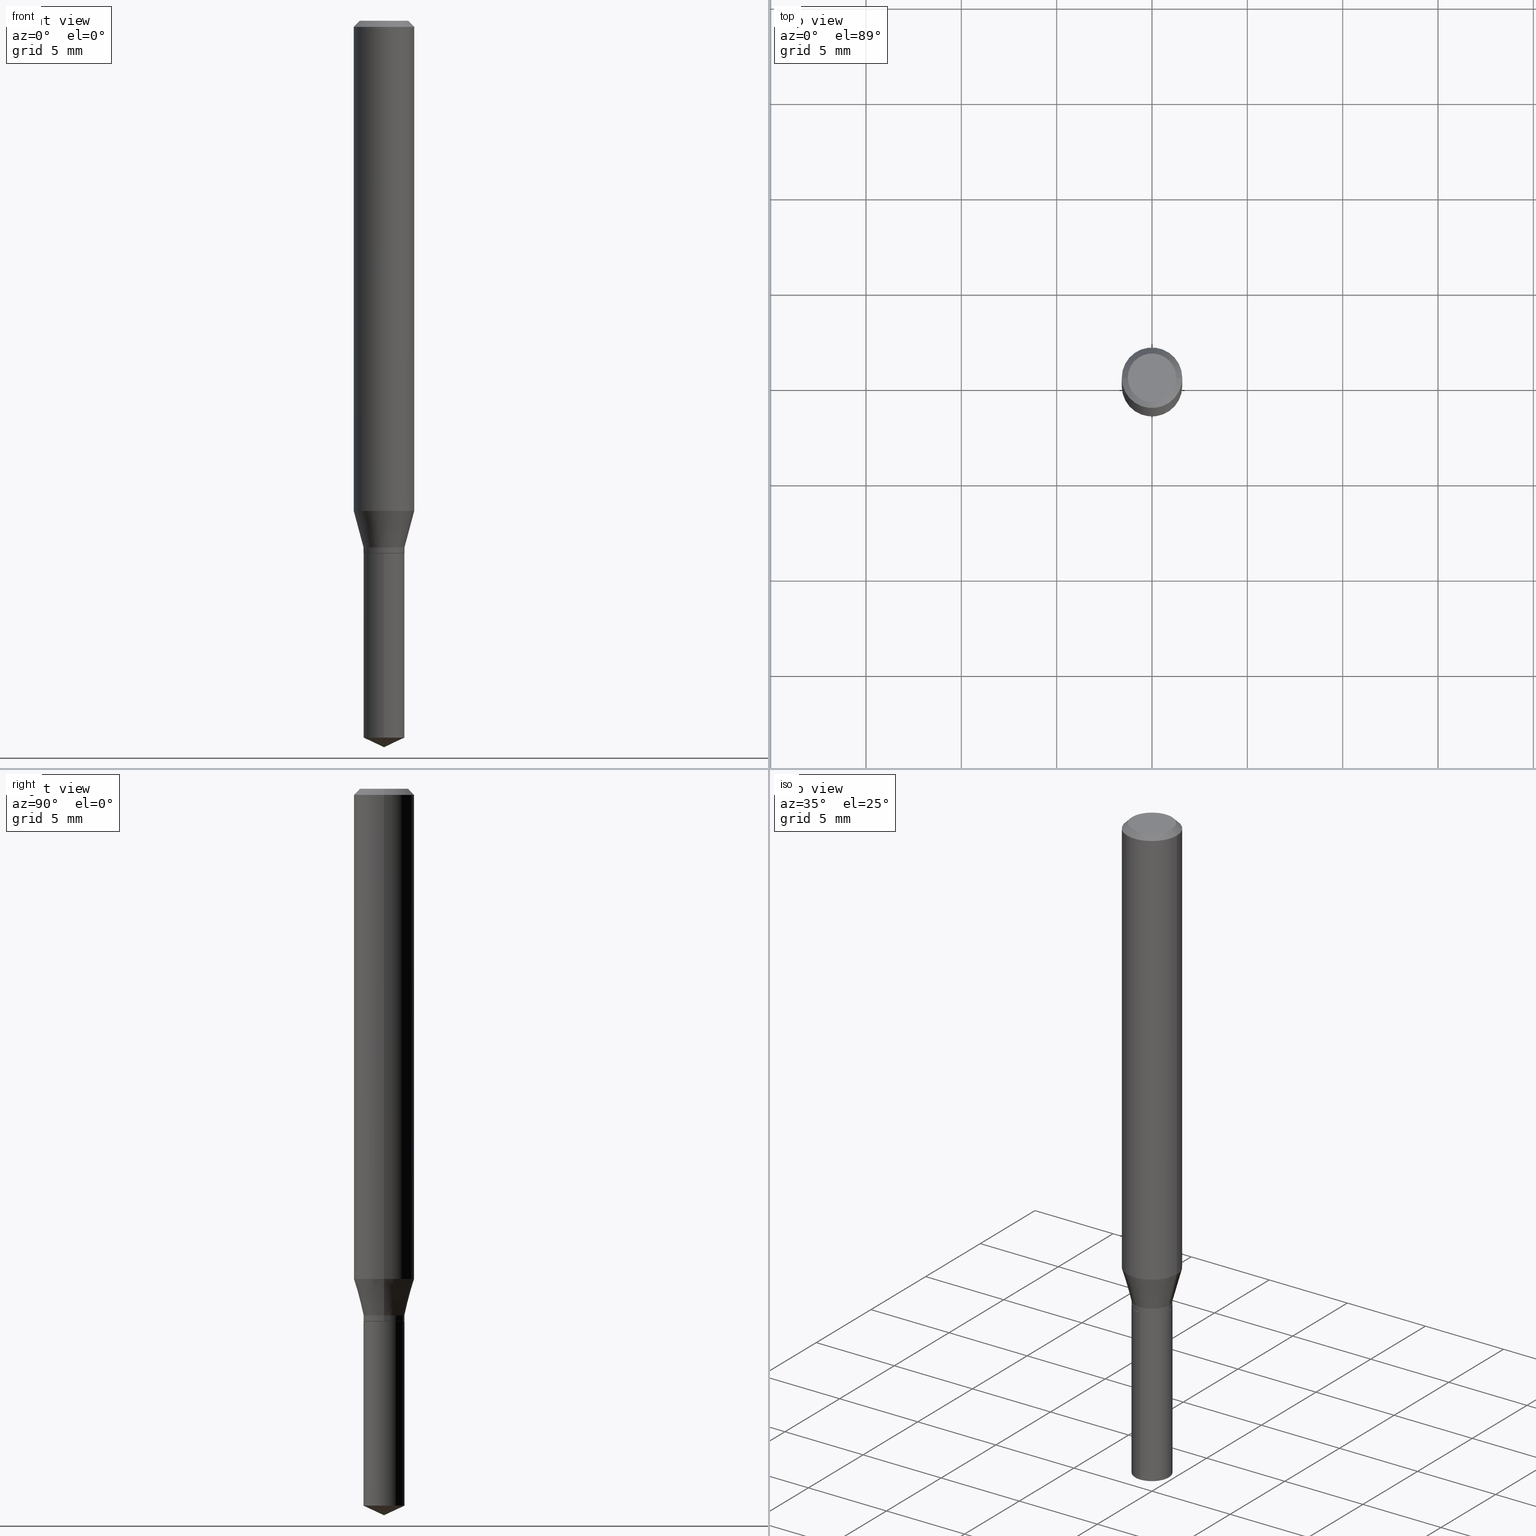
[diagram: canonical four-view strip — front | top / right | iso, engineering-drawing reading convention]
A machine part, canonical four-view strip (front | top / right | iso — engineering-drawing reading convention). The complete STEP part file that produces these views, byte-faithful:
ISO-10303-21;
HEADER;
FILE_DESCRIPTION (( 'STEP AP203' ),
    '1' );
FILE_NAME ('07194.STEP',
    '2024-04-23T19:57:21',
    ( '' ),
    ( '' ),
    'SwSTEP 2.0',
    'SolidWorks 2023',
    '' );
FILE_SCHEMA (( 'CONFIG_CONTROL_DESIGN' ));
ENDSEC;

DATA;
#1 = DIRECTION ( 'NONE',  ( -2.445468806185136877E-29, 3.491481338843145188E-15, 1.000000000000000000 ) ) ;
#2 = ORIENTED_EDGE ( 'NONE', *, *, #430, .F. ) ;
#3 = ORIENTED_EDGE ( 'NONE', *, *, #151, .T. ) ;
#4 = EDGE_CURVE ( 'NONE', #324, #416, #144, .T. ) ;
#5 = CALENDAR_DATE ( 2024, 23, 4 ) ;
#6 = CARTESIAN_POINT ( 'NONE',  ( 2.690015686803650369E-29, -3.840629472727460101E-15, -1.100000000000000089 ) ) ;
#7 = AXIS2_PLACEMENT_3D ( 'NONE', #131, #56, #94 ) ;
#8 = CARTESIAN_POINT ( 'NONE',  ( 0.000000000000000000, 0.000000000000000000, 0.000000000000000000 ) ) ;
#9 = CARTESIAN_POINT ( 'NONE',  ( 2.690015686803650369E-29, -3.840629472727460101E-15, -1.100000000000000089 ) ) ;
#10 = CARTESIAN_POINT ( 'NONE',  ( 0.04229999999999999732, -4.091666980990281781E-15, -1.087300000000000155 ) ) ;
#11 = CARTESIAN_POINT ( 'NONE',  ( 0.06250000000000001388, -4.800786840909313294E-16, -0.01250000000000008916 ) ) ;
#12 = VECTOR ( 'NONE', #343, 39.37007874015748854 ) ;
#13 = LOCAL_TIME ( 15, 57, 21.00000000000000000, #79 ) ;
#14 = DIRECTION ( 'NONE',  ( 2.445468806185136597E-29, -3.491481338843145583E-15, -1.000000000000000000 ) ) ;
#15 = DIRECTION ( 'NONE',  ( 1.000000000000000000, -6.982962677686266711E-15, 0.000000000000000000 ) ) ;
#16 = EDGE_CURVE ( 'NONE', #416, #35, #74, .T. ) ;
#17 = PERSON_AND_ORGANIZATION ( #228, #183 ) ;
#18 = CARTESIAN_POINT ( 'NONE',  ( -0.04229999999999999732, -3.495728082497630319E-15, -1.087300000000000155 ) ) ;
#19 = ORIENTED_EDGE ( 'NONE', *, *, #16, .F. ) ;
#20 = CIRCLE ( 'NONE', #477, 0.04999999999999999584 ) ;
#21 = VECTOR ( 'NONE', #171, 39.37007874015748854 ) ;
#22 = FACE_OUTER_BOUND ( 'NONE', #375, .T. ) ;
#23 = EDGE_LOOP ( 'NONE', ( #304, #69 ) ) ;
#24 = CYLINDRICAL_SURFACE ( 'NONE', #211, 0.04229999999999999732 ) ;
#25 = DIRECTION ( 'NONE',  ( -6.982962677686266711E-15, -1.000000000000000000, 3.229134744283999085E-15 ) ) ;
#26 = CC_DESIGN_PERSON_AND_ORGANIZATION_ASSIGNMENT ( #422, #225, ( #30 ) ) ;
#27 = CARTESIAN_POINT ( 'NONE',  ( 0.000000000000000000, 0.000000000000000000, 0.000000000000000000 ) ) ;
#28 = ORIENTED_EDGE ( 'NONE', *, *, #350, .T. ) ;
#29 = CIRCLE ( 'NONE', #435, 0.04229999999999999732 ) ;
#30 = SECURITY_CLASSIFICATION ( '', '', #457 ) ;
#31 = CARTESIAN_POINT ( 'NONE',  ( -0.04999999999999999584, 3.709698922520826725E-16, -1.592040838894077649E-18 ) ) ;
#32 = ORIENTED_EDGE ( 'NONE', *, *, #444, .T. ) ;
#33 = EDGE_CURVE ( 'NONE', #40, #293, #230, .T. ) ;
#34 = DIRECTION ( 'NONE',  ( 1.000000000000000000, -6.982962677686265922E-15, 4.875957971899673662E-29 ) ) ;
#35 = VERTEX_POINT ( 'NONE', #11 ) ;
#36 = FACE_OUTER_BOUND ( 'NONE', #297, .T. ) ;
#37 = ORIENTED_EDGE ( 'NONE', *, *, #4, .F. ) ;
#38 = DIRECTION ( 'NONE',  ( -2.445468806185136597E-29, 3.491481338843145583E-15, 1.000000000000000000 ) ) ;
#39 = EDGE_CURVE ( 'NONE', #382, #103, #442, .T. ) ;
#40 = VERTEX_POINT ( 'NONE', #186 ) ;
#41 = DATE_AND_TIME ( #436, #269 ) ;
#42 = CARTESIAN_POINT ( 'NONE',  ( 2.658958232965099489E-29, -3.796287659724152333E-15, -1.087300000000000155 ) ) ;
#43 = APPROVAL ( #55, 'UNSPECIFIED' ) ;
#44 = DATE_AND_TIME ( #162, #380 ) ;
#45 = CARTESIAN_POINT ( 'NONE',  ( 0.04999999999999999584, -4.077247707424184705E-16, -1.592040838888913461E-18 ) ) ;
#46 = CONICAL_SURFACE ( 'NONE', #141, 0.06250000000000001388, 0.7853981633974452814 ) ;
#47 = CIRCLE ( 'NONE', #149, 0.04229999999999999732 ) ;
#48 = DIRECTION ( 'NONE',  ( -6.982962677686267499E-15, -1.000000000000000000, 3.520397390770500413E-15 ) ) ;
#49 = DIRECTION ( 'NONE',  ( -6.982962677686267499E-15, -1.000000000000000000, 3.520397390770500413E-15 ) ) ;
#50 = DIRECTION ( 'NONE',  ( 1.000000000000000000, -6.982962677686266711E-15, 0.000000000000000000 ) ) ;
#51 = CONICAL_SURFACE ( 'NONE', #337, 84.42940631927322670, 1.134464013796310899 ) ;
#52 = CARTESIAN_POINT ( 'NONE',  ( 0.000000000000000000, 0.000000000000000000, 0.000000000000000000 ) ) ;
#53 = LINE ( 'NONE', #18, #302 ) ;
#54 = EDGE_LOOP ( 'NONE', ( #203, #64, #111, #257 ) ) ;
#55 = APPROVAL_STATUS ( 'not_yet_approved' ) ;
#56 = DIRECTION ( 'NONE',  ( -2.445468806185136597E-29, 3.491481338843145583E-15, 1.000000000000000000 ) ) ;
#57 = DIRECTION ( 'NONE',  ( -2.445399690415121530E-29, 3.491580316559632610E-15, 1.000000000000000000 ) ) ;
#58 = CC_DESIGN_APPROVAL ( #265, ( #30 ) ) ;
#59 = FACE_OUTER_BOUND ( 'NONE', #54, .T. ) ;
#60 = DIRECTION ( 'NONE',  ( -2.445468806185136877E-29, 3.491481338843145188E-15, 1.000000000000000000 ) ) ;
#61 = ORIENTED_EDGE ( 'NONE', *, *, #66, .T. ) ;
#62 = FACE_OUTER_BOUND ( 'NONE', #246, .T. ) ;
#63 = CIRCLE ( 'NONE', #475, 0.04229999999999999732 ) ;
#64 = ORIENTED_EDGE ( 'NONE', *, *, #459, .T. ) ;
#65 = CIRCLE ( 'NONE', #125, 0.04179999999999999688 ) ;
#66 = EDGE_CURVE ( 'NONE', #95, #373, #219, .T. ) ;
#67 = CC_DESIGN_SECURITY_CLASSIFICATION ( #30, ( #235 ) ) ;
#68 =( LENGTH_UNIT ( ) NAMED_UNIT ( * ) SI_UNIT ( $, .METRE. ) );
#69 = ORIENTED_EDGE ( 'NONE', *, *, #474, .F. ) ;
#70 = DIRECTION ( 'NONE',  ( 1.000000000000000000, -6.982962677686265922E-15, 0.000000000000000000 ) ) ;
#71 = ORIENTED_EDGE ( 'NONE', *, *, #251, .F. ) ;
#72 = PLANE ( 'NONE',  #272 ) ;
#73 = ORIENTED_EDGE ( 'NONE', *, *, #268, .F. ) ;
#74 = CIRCLE ( 'NONE', #370, 0.06250000000000001388 ) ;
#75 = AXIS2_PLACEMENT_3D ( 'NONE', #202, #481, #160 ) ;
#76 =( GEOMETRIC_REPRESENTATION_CONTEXT ( 3 ) GLOBAL_UNCERTAINTY_ASSIGNED_CONTEXT ( ( #116 ) ) GLOBAL_UNIT_ASSIGNED_CONTEXT ( ( #376, #198, #353 ) ) REPRESENTATION_CONTEXT ( 'NONE', 'WORKASPACE' ) );
#77 = PERSON_AND_ORGANIZATION_ROLE ( 'creator' ) ;
#78 = ORIENTED_EDGE ( 'NONE', *, *, #39, .F. ) ;
#79 = COORDINATED_UNIVERSAL_TIME_OFFSET ( 5, 0, .BEHIND. ) ;
#80 = DIRECTION ( 'NONE',  ( -2.445399690415121530E-29, 3.491580316559632610E-15, 1.000000000000000000 ) ) ;
#81 = APPLICATION_PROTOCOL_DEFINITION ( 'international standard', 'config_control_design', 1994, #256 ) ;
#82 = DIRECTION ( 'NONE',  ( 6.439704144417013787E-15, 0.9063077870366499367, 0.4226182617406992192 ) ) ;
#83 = ADVANCED_FACE ( 'NONE', ( #317 ), #286, .T. ) ;
#84 = CONICAL_SURFACE ( 'NONE', #75, 0.04229999999999999732, 0.2617993877991497964 ) ;
#85 = DIRECTION ( 'NONE',  ( -2.445468806185136597E-29, 3.491481338843145583E-15, 1.000000000000000000 ) ) ;
#86 = CARTESIAN_POINT ( 'NONE',  ( 2.474600633538342293E-29, -3.533073867569279079E-15, -1.011912573687108630 ) ) ;
#87 = ADVANCED_FACE ( 'NONE', ( #314 ), #51, .T. ) ;
#88 = CARTESIAN_POINT ( 'NONE',  ( 2.474600633538342293E-29, -3.533073867569279079E-15, -1.011912573687108630 ) ) ;
#89 = APPROVAL_STATUS ( 'not_yet_approved' ) ;
#90 = AXIS2_PLACEMENT_3D ( 'NONE', #359, #14, #465 ) ;
#91 = AXIS2_PLACEMENT_3D ( 'NONE', #281, #431, #237 ) ;
#92 = DIRECTION ( 'NONE',  ( 1.000000000000000000, -6.982962677686266711E-15, 4.876176775795935793E-29 ) ) ;
#93 = APPROVAL_DATE_TIME ( #41, #310 ) ;
#94 = DIRECTION ( 'NONE',  ( 1.000000000000000000, -6.982962677686266711E-15, 4.876176775795935793E-29 ) ) ;
#95 = VERTEX_POINT ( 'NONE', #148 ) ;
#96 = CARTESIAN_POINT ( 'NONE',  ( 3.056836007731442729E-31, -4.364351673553962300E-17, -0.01250000000000008916 ) ) ;
#97 = ADVANCED_FACE ( 'NONE', ( #360 ), #240, .T. ) ;
#98 = AXIS2_PLACEMENT_3D ( 'NONE', #170, #478, #333 ) ;
#99 = CARTESIAN_POINT ( 'NONE',  ( 2.690015686803650369E-29, -3.840629472727460101E-15, -1.100000000000000089 ) ) ;
#100 = VERTEX_POINT ( 'NONE', #45 ) ;
#101 = CARTESIAN_POINT ( 'NONE',  ( -2.953793212660927659E-16, -0.04230000000000515986, -1.480275186060043158 ) ) ;
#102 = EDGE_CURVE ( 'NONE', #409, #454, #112, .T. ) ;
#103 = VERTEX_POINT ( 'NONE', #118 ) ;
#104 = FACE_OUTER_BOUND ( 'NONE', #349, .T. ) ;
#105 = EDGE_LOOP ( 'NONE', ( #300, #182, #385, #142 ) ) ;
#106 = CARTESIAN_POINT ( 'NONE',  ( 0.06250000000000001388, -4.724246415962604812E-16, -0.01250000000000008916 ) ) ;
#107 = ORIENTED_EDGE ( 'NONE', *, *, #33, .T. ) ;
#108 = DIRECTION ( 'NONE',  ( 1.000000000000000000, -6.982962677686266711E-15, 4.876176775795935793E-29 ) ) ;
#109 = ORIENTED_EDGE ( 'NONE', *, *, #394, .T. ) ;
#110 = PERSON_AND_ORGANIZATION_ROLE ( 'design_supplier' ) ;
#111 = ORIENTED_EDGE ( 'NONE', *, *, #120, .F. ) ;
#112 = CIRCLE ( 'NONE', #378, 0.04229999999999999732 ) ;
#113 = CIRCLE ( 'NONE', #174, 0.06250000000000001388 ) ;
#114 = DIRECTION ( 'NONE',  ( -2.445468806185136597E-29, 3.491481338843145583E-15, 1.000000000000000000 ) ) ;
#115 = APPROVAL_DATE_TIME ( #231, #265 ) ;
#116 = UNCERTAINTY_MEASURE_WITH_UNIT (LENGTH_MEASURE( 1.000000000000000082E-05 ), #376, 'distance_accuracy_value', 'NONE');
#117 = CARTESIAN_POINT ( 'NONE',  ( 3.893286209682126177E-47, -5.558580879666067980E-33, -1.592040838891559689E-18 ) ) ;
#118 = CARTESIAN_POINT ( 'NONE',  ( 0.04229999999999999732, -4.091666980990281781E-15, -1.087300000000000155 ) ) ;
#119 = PLANE ( 'NONE',  #91 ) ;
#120 = EDGE_CURVE ( 'NONE', #208, #340, #63, .T. ) ;
#121 = CARTESIAN_POINT ( 'NONE',  ( 2.688792952400557567E-29, -3.838883732058038598E-15, -1.099499999999999922 ) ) ;
#122 = CC_DESIGN_DATE_AND_TIME_ASSIGNMENT ( #271, #192, ( #383 ) ) ;
#123 = CARTESIAN_POINT ( 'NONE',  ( 2.658958232965099489E-29, -3.796287659724152333E-15, -1.087300000000000155 ) ) ;
#124 = PERSON_AND_ORGANIZATION ( #228, #183 ) ;
#125 = AXIS2_PLACEMENT_3D ( 'NONE', #448, #348, #70 ) ;
#126 = AXIS2_PLACEMENT_3D ( 'NONE', #417, #260, #386 ) ;
#127 = DIRECTION ( 'NONE',  ( -2.445468806185136597E-29, 3.491481338843145583E-15, 1.000000000000000000 ) ) ;
#128 = FACE_OUTER_BOUND ( 'NONE', #180, .T. ) ;
#129 = ADVANCED_FACE ( 'NONE', ( #158 ), #355, .T. ) ;
#130 = ORIENTED_EDGE ( 'NONE', *, *, #243, .T. ) ;
#131 = CARTESIAN_POINT ( 'NONE',  ( 0.000000000000000000, 0.000000000000000000, 0.000000000000000000 ) ) ;
#132 = CC_DESIGN_PERSON_AND_ORGANIZATION_ASSIGNMENT ( #17, #77, ( #383 ) ) ;
#133 = ORIENTED_EDGE ( 'NONE', *, *, #357, .F. ) ;
#134 = AXIS2_PLACEMENT_3D ( 'NONE', #179, #485, #488 ) ;
#135 = CARTESIAN_POINT ( 'NONE',  ( -2.953793212661021829E-16, -0.04230000000000384147, -1.099999999999999867 ) ) ;
#136 = CARTESIAN_POINT ( 'NONE',  ( 3.005595772265491809E-16, 0.04229999999999616012, -1.100000000000000089 ) ) ;
#137 = EDGE_LOOP ( 'NONE', ( #2, #309, #387, #78 ) ) ;
#138 = DIRECTION ( 'NONE',  ( -2.445468806185136597E-29, 3.491481338843145583E-15, 1.000000000000000000 ) ) ;
#139 = ORIENTED_EDGE ( 'NONE', *, *, #487, .T. ) ;
#140 = CYLINDRICAL_SURFACE ( 'NONE', #421, 0.06250000000000006939 ) ;
#141 = AXIS2_PLACEMENT_3D ( 'NONE', #96, #168, #331 ) ;
#142 = ORIENTED_EDGE ( 'NONE', *, *, #413, .F. ) ;
#143 = DIRECTION ( 'NONE',  ( 1.000000000000000000, -6.982962677686265922E-15, 0.000000000000000000 ) ) ;
#144 = LINE ( 'NONE', #153, #232 ) ;
#145 = CARTESIAN_POINT ( 'NONE',  ( 3.893286209682126177E-47, -5.558580879666067980E-33, -1.592040838891559689E-18 ) ) ;
#146 = EDGE_LOOP ( 'NONE', ( #424, #218, #178, #306 ) ) ;
#147 = CALENDAR_DATE ( 2024, 23, 4 ) ;
#148 = CARTESIAN_POINT ( 'NONE',  ( 0.06250000000000012490, -3.969509034924671143E-15, -1.011912573687108630 ) ) ;
#149 = AXIS2_PLACEMENT_3D ( 'NONE', #401, #127, #15 ) ;
#150 = LOCAL_TIME ( 15, 57, 21.00000000000000000, #152 ) ;
#151 = EDGE_CURVE ( 'NONE', #324, #100, #20, .T. ) ;
#152 = COORDINATED_UNIVERSAL_TIME_OFFSET ( 5, 0, .BEHIND. ) ;
#153 = CARTESIAN_POINT ( 'NONE',  ( -0.06250000000000001388, 3.927916506198521080E-16, -0.01250000000000008916 ) ) ;
#154 = EDGE_CURVE ( 'NONE', #458, #293, #428, .T. ) ;
#155 = FACE_OUTER_BOUND ( 'NONE', #23, .T. ) ;
#156 = DIRECTION ( 'NONE',  ( -2.445468806185136597E-29, 3.491481338843145583E-15, 1.000000000000000000 ) ) ;
#157 = AXIS2_PLACEMENT_3D ( 'NONE', #277, #469, #432 ) ;
#158 = FACE_OUTER_BOUND ( 'NONE', #146, .T. ) ;
#159 = COORDINATED_UNIVERSAL_TIME_OFFSET ( 5, 0, .BEHIND. ) ;
#160 = DIRECTION ( 'NONE',  ( 1.000000000000000000, -6.982962677686266711E-15, 0.000000000000000000 ) ) ;
#161 = ORIENTED_EDGE ( 'NONE', *, *, #284, .F. ) ;
#162 = CALENDAR_DATE ( 2024, 23, 4 ) ;
#163 = LINE ( 'NONE', #335, #21 ) ;
#164 = ORIENTED_EDGE ( 'NONE', *, *, #33, .F. ) ;
#165 = DIRECTION ( 'NONE',  ( 1.000000000000000000, 0.000000000000000000, 0.000000000000000000 ) ) ;
#166 = AXIS2_PLACEMENT_3D ( 'NONE', #404, #292, #411 ) ;
#167 = EDGE_CURVE ( 'NONE', #103, #95, #316, .T. ) ;
#168 = DIRECTION ( 'NONE',  ( 2.445468806185136597E-29, -3.491481338843145583E-15, -1.000000000000000000 ) ) ;
#169 = ORIENTED_EDGE ( 'NONE', *, *, #173, .T. ) ;
#170 = CARTESIAN_POINT ( 'NONE',  ( 2.690015686803650369E-29, -3.840629472727460101E-15, -1.100000000000000089 ) ) ;
#171 = DIRECTION ( 'NONE',  ( 0.7071067811865232589, -2.468850131082003836E-15, 0.7071067811865715536 ) ) ;
#172 = ORIENTED_EDGE ( 'NONE', *, *, #120, .T. ) ;
#173 = EDGE_CURVE ( 'NONE', #373, #95, #204, .T. ) ;
#174 = AXIS2_PLACEMENT_3D ( 'NONE', #341, #38, #143 ) ;
#175 = DIRECTION ( 'NONE',  ( -2.445468806185136877E-29, 3.491481338843145188E-15, 1.000000000000000000 ) ) ;
#176 = ORIENTED_EDGE ( 'NONE', *, *, #167, .T. ) ;
#177 = DIRECTION ( 'NONE',  ( -2.445468806185136597E-29, 3.491481338843145583E-15, 1.000000000000000000 ) ) ;
#178 = ORIENTED_EDGE ( 'NONE', *, *, #262, .T. ) ;
#179 = CARTESIAN_POINT ( 'NONE',  ( 3.619940509067433846E-29, -5.168390827250759204E-15, -1.480275186060043602 ) ) ;
#180 = EDGE_LOOP ( 'NONE', ( #3, #28 ) ) ;
#181 = CARTESIAN_POINT ( 'NONE',  ( -0.06250000000000012490, -3.088984657719215279E-15, -1.011912573687108630 ) ) ;
#182 = ORIENTED_EDGE ( 'NONE', *, *, #430, .T. ) ;
#183 = ORGANIZATION ( 'UNSPECIFIED', 'UNSPECIFIED', '' ) ;
#184 = LINE ( 'NONE', #136, #379 ) ;
#185 = EDGE_LOOP ( 'NONE', ( #273, #130, #440, #253 ) ) ;
#186 = CARTESIAN_POINT ( 'NONE',  ( 3.668099535622682715E-29, -5.237370474839449507E-15, -1.500000000000000222 ) ) ;
#187 = ADVANCED_FACE ( 'NONE', ( #397 ), #354, .T. ) ;
#188 = ADVANCED_FACE ( 'NONE', ( #155 ), #119, .F. ) ;
#189 = DATE_AND_TIME ( #147, #13 ) ;
#190 = DIRECTION ( 'NONE',  ( -6.982962677686266711E-15, -1.000000000000000000, 3.229134744283999085E-15 ) ) ;
#191 = AXIS2_PLACEMENT_3D ( 'NONE', #42, #313, #50 ) ;
#192 = DATE_TIME_ROLE ( 'creation_date' ) ;
#193 = DIRECTION ( 'NONE',  ( -6.982962677686266711E-15, -1.000000000000000000, 3.229134744283999085E-15 ) ) ;
#194 = DIRECTION ( 'NONE',  ( 1.000000000000000000, -6.982962677686265922E-15, 0.000000000000000000 ) ) ;
#195 = DIRECTION ( 'NONE',  ( -2.445468806185136597E-29, 3.491481338843145583E-15, 1.000000000000000000 ) ) ;
#196 = CIRCLE ( 'NONE', #134, 0.04229999999999999732 ) ;
#197 = LINE ( 'NONE', #135, #345 ) ;
#198 =( NAMED_UNIT ( * ) PLANE_ANGLE_UNIT ( ) SI_UNIT ( $, .RADIAN. ) );
#199 = DIRECTION ( 'NONE',  ( -2.445468806185136597E-29, 3.491481338843145583E-15, 1.000000000000000000 ) ) ;
#200 = EDGE_CURVE ( 'NONE', #103, #382, #47, .T. ) ;
#201 = APPROVAL_ROLE ( '' ) ;
#202 = CARTESIAN_POINT ( 'NONE',  ( 2.658958232965099489E-29, -3.796287659724152333E-15, -1.087300000000000155 ) ) ;
#203 = ORIENTED_EDGE ( 'NONE', *, *, #154, .T. ) ;
#204 = CIRCLE ( 'NONE', #451, 0.06250000000000012490 ) ;
#205 = CYLINDRICAL_SURFACE ( 'NONE', #403, 0.04229999999999999732 ) ;
#206 = ADVANCED_FACE ( 'NONE', ( #128 ), #369, .F. ) ;
#207 = DIRECTION ( 'NONE',  ( -2.445399690415121530E-29, 3.491580316559632610E-15, 1.000000000000000000 ) ) ;
#208 = VERTEX_POINT ( 'NONE', #372 ) ;
#209 = LENGTH_MEASURE_WITH_UNIT ( LENGTH_MEASURE( 0.02539999999999999897 ), #68 );
#210 = ORIENTED_EDGE ( 'NONE', *, *, #487, .F. ) ;
#211 = AXIS2_PLACEMENT_3D ( 'NONE', #291, #199, #92 ) ;
#212 = CARTESIAN_POINT ( 'NONE',  ( -0.04229999999999999732, 3.005595772265223596E-16, -2.080709543177825323E-30 ) ) ;
#213 = VERTEX_POINT ( 'NONE', #245 ) ;
#214 = CARTESIAN_POINT ( 'NONE',  ( -0.04229999999999999732, -3.517026118664573451E-15, -1.087300000000000155 ) ) ;
#215 = ORIENTED_EDGE ( 'NONE', *, *, #321, .F. ) ;
#216 = ADVANCED_FACE ( 'NONE', ( #59 ), #479, .T. ) ;
#217 = CARTESIAN_POINT ( 'NONE',  ( -0.04179999999999999688, -3.540973382005627390E-15, -1.100000000000000089 ) ) ;
#218 = ORIENTED_EDGE ( 'NONE', *, *, #357, .T. ) ;
#219 = CIRCLE ( 'NONE', #294, 0.06250000000000012490 ) ;
#220 = CARTESIAN_POINT ( 'NONE',  ( 2.690015686803650369E-29, -3.840629472727460101E-15, -1.100000000000000089 ) ) ;
#221 = CONICAL_SURFACE ( 'NONE', #318, 0.04229999999999999732, 0.2617993877991497964 ) ;
#222 = ORIENTED_EDGE ( 'NONE', *, *, #444, .F. ) ;
#223 = VECTOR ( 'NONE', #175, 39.37007874015748143 ) ;
#224 = ADVANCED_FACE ( 'NONE', ( #374 ), #84, .T. ) ;
#225 = PERSON_AND_ORGANIZATION_ROLE ( 'classification_officer' ) ;
#226 = EDGE_CURVE ( 'NONE', #340, #208, #410, .T. ) ;
#227 = EDGE_LOOP ( 'NONE', ( #377, #249, #176, #415 ) ) ;
#228 = PERSON ( 'UNSPECIFIED', 'UNSPECIFIED', 'UNSPECIFIED', ('UNSPECIFIED'), ('UNSPECIFIED'), ('UNSPECIFIED') ) ;
#229 = COORDINATED_UNIVERSAL_TIME_OFFSET ( 5, 0, .BEHIND. ) ;
#230 = LINE ( 'NONE', #393, #311 ) ;
#231 = DATE_AND_TIME ( #322, #150 ) ;
#232 = VECTOR ( 'NONE', #398, 39.37007874015748143 ) ;
#233 = DIRECTION ( 'NONE',  ( 1.000000000000000000, -6.982962677686264344E-15, 0.000000000000000000 ) ) ;
#234 = AXIS2_PLACEMENT_3D ( 'NONE', #99, #57, #25 ) ;
#235 = PRODUCT_DEFINITION_FORMATION_WITH_SPECIFIED_SOURCE ( 'ANY', '', #282, .NOT_KNOWN. ) ;
#236 = CARTESIAN_POINT ( 'NONE',  ( 3.056836007731442729E-31, -4.364351673553962300E-17, -0.01250000000000008916 ) ) ;
#237 = DIRECTION ( 'NONE',  ( 1.000000000000000000, -6.982962677686265922E-15, 4.876176775795935793E-29 ) ) ;
#238 = MANIFOLD_SOLID_BREP ( 'Body-Move/Copy2[1]', #450 ) ;
#239 = CARTESIAN_POINT ( 'NONE',  ( -0.04179999999999999688, -3.543622609179738197E-15, -1.100000000000000089 ) ) ;
#240 = CONICAL_SURFACE ( 'NONE', #90, 0.06250000000000001388, 0.7853981633974452814 ) ;
#241 = AXIS2_PLACEMENT_3D ( 'NONE', #145, #177, #34 ) ;
#242 = DIRECTION ( 'NONE',  ( 1.000000000000000000, -6.982962677686266711E-15, 0.000000000000000000 ) ) ;
#243 = EDGE_CURVE ( 'NONE', #382, #373, #53, .T. ) ;
#244 = APPLICATION_PROTOCOL_DEFINITION ( 'international standard', 'config_control_design', 1994, #247 ) ;
#245 = CARTESIAN_POINT ( 'NONE',  ( 0.04179999999999999688, -4.132517312654745753E-15, -1.100000000000000089 ) ) ;
#246 = EDGE_LOOP ( 'NONE', ( #172, #389 ) ) ;
#247 = APPLICATION_CONTEXT ( 'configuration controlled 3d designs of mechanical parts and assemblies' ) ;
#248 = DIRECTION ( 'NONE',  ( -0.2588190451025211281, 5.211531920934548675E-15, 0.9659258262890682012 ) ) ;
#249 = ORIENTED_EDGE ( 'NONE', *, *, #39, .T. ) ;
#250 = MANIFOLD_SOLID_BREP ( 'Body-Move/Copy2[2]', #327 ) ;
#251 = EDGE_CURVE ( 'NONE', #213, #409, #163, .T. ) ;
#252 = DIRECTION ( 'NONE',  ( -6.982962677686266711E-15, -1.000000000000000000, 3.229134744283999085E-15 ) ) ;
#253 = ORIENTED_EDGE ( 'NONE', *, *, #167, .F. ) ;
#254 = ADVANCED_FACE ( 'NONE', ( #326 ), #24, .T. ) ;
#255 = CARTESIAN_POINT ( 'NONE',  ( 3.668099535622682155E-29, -5.237370474839448718E-15, -1.500000000000000222 ) ) ;
#256 = APPLICATION_CONTEXT ( 'configuration controlled 3d designs of mechanical parts and assemblies' ) ;
#257 = ORIENTED_EDGE ( 'NONE', *, *, #262, .F. ) ;
#258 = CARTESIAN_POINT ( 'NONE',  ( 3.005595772265585979E-16, 0.04229999999999616012, -1.100000000000000089 ) ) ;
#259 = ORIENTED_EDGE ( 'NONE', *, *, #438, .T. ) ;
#260 = DIRECTION ( 'NONE',  ( -2.445468806185136597E-29, 3.491481338843145583E-15, 1.000000000000000000 ) ) ;
#261 = EDGE_LOOP ( 'NONE', ( #472, #267, #418, #71 ) ) ;
#262 = EDGE_CURVE ( 'NONE', #458, #208, #197, .T. ) ;
#263 = DIRECTION ( 'NONE',  ( -2.445399690415121810E-29, 3.491580316559632610E-15, 1.000000000000000000 ) ) ;
#264 = ORIENTED_EDGE ( 'NONE', *, *, #394, .F. ) ;
#265 = APPROVAL ( #473, 'UNSPECIFIED' ) ;
#266 = CARTESIAN_POINT ( 'NONE',  ( -0.06250000000000001388, -1.344269482302345718E-15, -0.01250000000000008916 ) ) ;
#267 = ORIENTED_EDGE ( 'NONE', *, *, #268, .T. ) ;
#268 = EDGE_CURVE ( 'NONE', #484, #454, #445, .T. ) ;
#269 = LOCAL_TIME ( 15, 57, 21.00000000000000000, #392 ) ;
#270 = AXIS2_PLACEMENT_3D ( 'NONE', #6, #85, #425 ) ;
#271 = DATE_AND_TIME ( #5, #466 ) ;
#272 = AXIS2_PLACEMENT_3D ( 'NONE', #220, #384, #303 ) ;
#273 = ORIENTED_EDGE ( 'NONE', *, *, #200, .T. ) ;
#274 = PERSON_AND_ORGANIZATION ( #228, #183 ) ;
#275 = CARTESIAN_POINT ( 'NONE',  ( -9.260740279983036507E-28, 1.322265303911854087E-13, 37.87007874015748143 ) ) ;
#276 = SHAPE_DEFINITION_REPRESENTATION ( #399, #368 ) ;
#277 = CARTESIAN_POINT ( 'NONE',  ( 3.619940509067433846E-29, -5.168390827250759204E-15, -1.480275186060043602 ) ) ;
#278 = CARTESIAN_POINT ( 'NONE',  ( 2.690015686803650369E-29, -3.840629472727460101E-15, -1.100000000000000089 ) ) ;
#279 = AXIS2_PLACEMENT_3D ( 'NONE', #275, #429, #48 ) ;
#280 = ADVANCED_FACE ( 'NONE', ( #402 ), #205, .T. ) ;
#281 = CARTESIAN_POINT ( 'NONE',  ( 2.690015686803650369E-29, -3.840629472727460101E-15, -1.100000000000000089 ) ) ;
#282 = PRODUCT ( '07194', '07194', '', ( #405 ) ) ;
#283 = DIRECTION ( 'NONE',  ( 1.000000000000000000, -6.982962677686264344E-15, 0.000000000000000000 ) ) ;
#284 = EDGE_CURVE ( 'NONE', #454, #409, #29, .T. ) ;
#285 = DIRECTION ( 'NONE',  ( -2.445468806185136597E-29, 3.491481338843145583E-15, 1.000000000000000000 ) ) ;
#286 = CONICAL_SURFACE ( 'NONE', #270, 0.04179999999999999688, 0.7853981633974141952 ) ;
#287 = CIRCLE ( 'NONE', #98, 0.04179999999999999688 ) ;
#288 = PERSON_AND_ORGANIZATION_ROLE ( 'creator' ) ;
#289 = CC_DESIGN_PERSON_AND_ORGANIZATION_ASSIGNMENT ( #274, #110, ( #235 ) ) ;
#290 = FACE_OUTER_BOUND ( 'NONE', #332, .T. ) ;
#291 = CARTESIAN_POINT ( 'NONE',  ( 0.000000000000000000, 0.000000000000000000, 0.000000000000000000 ) ) ;
#292 = DIRECTION ( 'NONE',  ( 2.438088387897960049E-29, -3.491481338843145188E-15, -1.000000000000000000 ) ) ;
#293 = VERTEX_POINT ( 'NONE', #471 ) ;
#294 = AXIS2_PLACEMENT_3D ( 'NONE', #86, #156, #283 ) ;
#295 = AXIS2_PLACEMENT_3D ( 'NONE', #8, #325, #165 ) ;
#296 = DIRECTION ( 'NONE',  ( -2.445399690415121810E-29, 3.491580316559632610E-15, 1.000000000000000000 ) ) ;
#297 = EDGE_LOOP ( 'NONE', ( #210, #169, #109, #19 ) ) ;
#298 = ADVANCED_FACE ( 'NONE', ( #476 ), #221, .T. ) ;
#299 = CARTESIAN_POINT ( 'NONE',  ( -0.04229999999999999732, -3.517026118664573451E-15, -1.099499999999999922 ) ) ;
#300 = ORIENTED_EDGE ( 'NONE', *, *, #102, .T. ) ;
#301 = AXIS2_PLACEMENT_3D ( 'NONE', #9, #391, #193 ) ;
#302 = VECTOR ( 'NONE', #248, 39.37007874015748143 ) ;
#303 = DIRECTION ( 'NONE',  ( 6.982962677686265922E-15, 1.000000000000000000, -3.491580316559632610E-15 ) ) ;
#304 = ORIENTED_EDGE ( 'NONE', *, *, #320, .F. ) ;
#305 = CARTESIAN_POINT ( 'NONE',  ( -0.06250000000000006939, 4.440892098500631092E-16, -3.074334431409319267E-30 ) ) ;
#306 = ORIENTED_EDGE ( 'NONE', *, *, #226, .F. ) ;
#307 = ADVANCED_FACE ( 'NONE', ( #290 ), #437, .T. ) ;
#308 = LINE ( 'NONE', #414, #482 ) ;
#309 = ORIENTED_EDGE ( 'NONE', *, *, #284, .T. ) ;
#310 = APPROVAL ( #89, 'UNSPECIFIED' ) ;
#311 = VECTOR ( 'NONE', #82, 39.37007874015748854 ) ;
#312 = VECTOR ( 'NONE', #1, 39.37007874015748143 ) ;
#313 = DIRECTION ( 'NONE',  ( -2.445468806185136597E-29, 3.491481338843145583E-15, 1.000000000000000000 ) ) ;
#314 = FACE_OUTER_BOUND ( 'NONE', #447, .T. ) ;
#315 = ADVANCED_FACE ( 'NONE', ( #22 ), #46, .T. ) ;
#316 = LINE ( 'NONE', #10, #490 ) ;
#317 = FACE_OUTER_BOUND ( 'NONE', #261, .T. ) ;
#318 = AXIS2_PLACEMENT_3D ( 'NONE', #123, #285, #242 ) ;
#319 = DIRECTION ( 'NONE',  ( 1.000000000000000000, -6.982962677686265922E-15, 4.875957971899673662E-29 ) ) ;
#320 = EDGE_CURVE ( 'NONE', #213, #484, #287, .T. ) ;
#321 = EDGE_CURVE ( 'NONE', #40, #458, #441, .T. ) ;
#322 = CALENDAR_DATE ( 2024, 23, 4 ) ;
#323 = DIRECTION ( 'NONE',  ( 1.000000000000000000, -6.982962677686266711E-15, 0.000000000000000000 ) ) ;
#324 = VERTEX_POINT ( 'NONE', #31 ) ;
#325 = DIRECTION ( 'NONE',  ( 0.000000000000000000, 0.000000000000000000, 1.000000000000000000 ) ) ;
#326 = FACE_OUTER_BOUND ( 'NONE', #137, .T. ) ;
#327 = CLOSED_SHELL ( 'NONE', ( #83, #97, #307, #224, #280, #254, #298, #371, #315, #206, #188, #480 ) ) ;
#328 = ORIENTED_EDGE ( 'NONE', *, *, #4, .T. ) ;
#329 = VECTOR ( 'NONE', #60, 39.37007874015748143 ) ;
#330 = VECTOR ( 'NONE', #408, 39.37007874015748854 ) ;
#331 = DIRECTION ( 'NONE',  ( -1.000000000000000000, 6.982962677686265922E-15, 0.000000000000000000 ) ) ;
#332 = EDGE_LOOP ( 'NONE', ( #61, #139, #222, #264 ) ) ;
#333 = DIRECTION ( 'NONE',  ( 1.000000000000000000, -6.982962677686265922E-15, 0.000000000000000000 ) ) ;
#334 = PRODUCT_RELATED_PRODUCT_CATEGORY ( 'detail', '', ( #282 ) ) ;
#335 = CARTESIAN_POINT ( 'NONE',  ( 0.04179999999999999688, -4.132517312654745753E-15, -1.100000000000000089 ) ) ;
#336 = CC_DESIGN_APPROVAL ( #310, ( #383 ) ) ;
#337 = AXIS2_PLACEMENT_3D ( 'NONE', #352, #80, #49 ) ;
#338 = VECTOR ( 'NONE', #381, 39.37007874015748143 ) ;
#339 = DIRECTION ( 'NONE',  ( -2.445468806185136877E-29, 3.491481338843145188E-15, 1.000000000000000000 ) ) ;
#340 = VERTEX_POINT ( 'NONE', #258 ) ;
#341 = CARTESIAN_POINT ( 'NONE',  ( 3.056836007731442729E-31, -4.364351673553962300E-17, -0.01250000000000008916 ) ) ;
#342 = ORIENTED_EDGE ( 'NONE', *, *, #16, .T. ) ;
#343 = DIRECTION ( 'NONE',  ( -6.328713451373358335E-15, -0.9063077870366470501, 0.4226182617407055475 ) ) ;
#344 = ORIENTED_EDGE ( 'NONE', *, *, #151, .F. ) ;
#345 = VECTOR ( 'NONE', #296, 39.37007874015748143 ) ;
#346 = LINE ( 'NONE', #305, #223 ) ;
#347 = ORIENTED_EDGE ( 'NONE', *, *, #474, .T. ) ;
#348 = DIRECTION ( 'NONE',  ( -2.445468806185136597E-29, 3.491481338843145583E-15, 1.000000000000000000 ) ) ;
#349 = EDGE_LOOP ( 'NONE', ( #73, #347, #449, #161 ) ) ;
#350 = EDGE_CURVE ( 'NONE', #100, #324, #361, .T. ) ;
#351 = APPROVAL_ROLE ( '' ) ;
#352 = CARTESIAN_POINT ( 'NONE',  ( -9.260740279983036507E-28, 1.322265303911854087E-13, 37.87007874015748143 ) ) ;
#353 =( NAMED_UNIT ( * ) SI_UNIT ( $, .STERADIAN. ) SOLID_ANGLE_UNIT ( ) );
#354 = CONICAL_SURFACE ( 'NONE', #279, 84.42940631927322670, 1.134464013796310899 ) ;
#355 = CYLINDRICAL_SURFACE ( 'NONE', #301, 0.04229999999999999732 ) ;
#356 = CONICAL_SURFACE ( 'NONE', #126, 0.04179999999999999688, 0.7853981633974141952 ) ;
#357 = EDGE_CURVE ( 'NONE', #293, #458, #196, .T. ) ;
#358 = DIRECTION ( 'NONE',  ( -2.445468806185136597E-29, 3.491481338843145583E-15, 1.000000000000000000 ) ) ;
#359 = CARTESIAN_POINT ( 'NONE',  ( 3.056836007731442729E-31, -4.364351673553962300E-17, -0.01250000000000008916 ) ) ;
#360 = FACE_OUTER_BOUND ( 'NONE', #489, .T. ) ;
#361 = CIRCLE ( 'NONE', #241, 0.04999999999999999584 ) ;
#362 = APPROVAL_PERSON_ORGANIZATION ( #390, #265, #351 ) ;
#363 = DIRECTION ( 'NONE',  ( -2.445468806185136597E-29, 3.491481338843145583E-15, 1.000000000000000000 ) ) ;
#364 = CC_DESIGN_DATE_AND_TIME_ASSIGNMENT ( #44, #433, ( #30 ) ) ;
#365 = PERSON_AND_ORGANIZATION_ROLE ( 'design_owner' ) ;
#366 = CARTESIAN_POINT ( 'NONE',  ( 2.688792952400557567E-29, -3.838883732058038598E-15, -1.099499999999999922 ) ) ;
#367 = APPROVAL_DATE_TIME ( #189, #43 ) ;
#368 = ADVANCED_BREP_SHAPE_REPRESENTATION ( '07194', ( #238, #250, #295 ), #76 ) ;
#369 = PLANE ( 'NONE',  #166 ) ;
#370 = AXIS2_PLACEMENT_3D ( 'NONE', #236, #195, #194 ) ;
#371 = ADVANCED_FACE ( 'NONE', ( #36 ), #140, .T. ) ;
#372 = CARTESIAN_POINT ( 'NONE',  ( -2.953793212661021829E-16, -0.04230000000000384147, -1.099999999999999867 ) ) ;
#373 = VERTEX_POINT ( 'NONE', #181 ) ;
#374 = FACE_OUTER_BOUND ( 'NONE', #185, .T. ) ;
#375 = EDGE_LOOP ( 'NONE', ( #420, #344, #328, #342 ) ) ;
#376 =( CONVERSION_BASED_UNIT ( 'INCH', #209 ) LENGTH_UNIT ( ) NAMED_UNIT ( #452 ) );
#377 = ORIENTED_EDGE ( 'NONE', *, *, #243, .F. ) ;
#378 = AXIS2_PLACEMENT_3D ( 'NONE', #121, #462, #426 ) ;
#379 = VECTOR ( 'NONE', #263, 39.37007874015748143 ) ;
#380 = LOCAL_TIME ( 15, 57, 21.00000000000000000, #229 ) ;
#381 = DIRECTION ( 'NONE',  ( 0.7071067811865453523, -7.319954787623248157E-15, -0.7071067811865496822 ) ) ;
#382 = VERTEX_POINT ( 'NONE', #214 ) ;
#383 = PRODUCT_DEFINITION ( 'UNKNOWN', '', #235, #423 ) ;
#384 = DIRECTION ( 'NONE',  ( 2.445399690415121250E-29, -3.491580316559632610E-15, -1.000000000000000000 ) ) ;
#385 = ORIENTED_EDGE ( 'NONE', *, *, #200, .F. ) ;
#386 = DIRECTION ( 'NONE',  ( 1.000000000000000000, -6.982962677686265922E-15, 0.000000000000000000 ) ) ;
#387 = ORIENTED_EDGE ( 'NONE', *, *, #413, .T. ) ;
#388 = CARTESIAN_POINT ( 'NONE',  ( 0.04229999999999999732, -4.134263053324167257E-15, -1.099499999999999922 ) ) ;
#389 = ORIENTED_EDGE ( 'NONE', *, *, #226, .T. ) ;
#390 = PERSON_AND_ORGANIZATION ( #228, #183 ) ;
#391 = DIRECTION ( 'NONE',  ( -2.445399690415121530E-29, 3.491580316559632610E-15, 1.000000000000000000 ) ) ;
#392 = COORDINATED_UNIVERSAL_TIME_OFFSET ( 5, 0, .BEHIND. ) ;
#393 = CARTESIAN_POINT ( 'NONE',  ( 3.668252923656895710E-29, -5.237152723863177100E-15, -1.500000000000000222 ) ) ;
#394 = EDGE_CURVE ( 'NONE', #95, #35, #308, .T. ) ;
#395 = PERSON_AND_ORGANIZATION ( #228, #183 ) ;
#396 = CC_DESIGN_APPROVAL ( #43, ( #235 ) ) ;
#397 = FACE_OUTER_BOUND ( 'NONE', #407, .T. ) ;
#398 = DIRECTION ( 'NONE',  ( -0.7071067811865453523, 2.468850131082234184E-15, -0.7071067811865496822 ) ) ;
#399 = PRODUCT_DEFINITION_SHAPE ( 'NONE', 'NONE',  #383 ) ;
#400 = ADVANCED_FACE ( 'NONE', ( #62 ), #72, .F. ) ;
#401 = CARTESIAN_POINT ( 'NONE',  ( 2.658958232965099489E-29, -3.796287659724152333E-15, -1.087300000000000155 ) ) ;
#402 = FACE_OUTER_BOUND ( 'NONE', #105, .T. ) ;
#403 = AXIS2_PLACEMENT_3D ( 'NONE', #52, #434, #439 ) ;
#404 = CARTESIAN_POINT ( 'NONE',  ( 1.946643104841063088E-47, -2.779290439833033990E-33, -7.960204194457798443E-19 ) ) ;
#405 = MECHANICAL_CONTEXT ( 'NONE', #256, 'mechanical' ) ;
#406 = CARTESIAN_POINT ( 'NONE',  ( 2.690015686803650369E-29, -3.840629472727460101E-15, -1.100000000000000089 ) ) ;
#407 = EDGE_LOOP ( 'NONE', ( #215, #107, #456 ) ) ;
#408 = DIRECTION ( 'NONE',  ( -0.7071067811865232589, 7.493145998870265808E-15, 0.7071067811865715536 ) ) ;
#409 = VERTEX_POINT ( 'NONE', #388 ) ;
#410 = CIRCLE ( 'NONE', #234, 0.04229999999999999732 ) ;
#411 = DIRECTION ( 'NONE',  ( -1.000000000000000000, 6.982962677686265922E-15, -4.876176775795935793E-29 ) ) ;
#412 = ORIENTED_EDGE ( 'NONE', *, *, #321, .T. ) ;
#413 = EDGE_CURVE ( 'NONE', #409, #103, #455, .T. ) ;
#414 = CARTESIAN_POINT ( 'NONE',  ( 0.06250000000000006939, -4.364351673553921624E-16, 3.047610484872463374E-30 ) ) ;
#415 = ORIENTED_EDGE ( 'NONE', *, *, #173, .F. ) ;
#416 = VERTEX_POINT ( 'NONE', #266 ) ;
#417 = CARTESIAN_POINT ( 'NONE',  ( 2.690015686803650369E-29, -3.840629472727460101E-15, -1.100000000000000089 ) ) ;
#418 = ORIENTED_EDGE ( 'NONE', *, *, #102, .F. ) ;
#419 = LINE ( 'NONE', #212, #329 ) ;
#420 = ORIENTED_EDGE ( 'NONE', *, *, #438, .F. ) ;
#421 = AXIS2_PLACEMENT_3D ( 'NONE', #27, #138, #108 ) ;
#422 = PERSON_AND_ORGANIZATION ( #228, #183 ) ;
#423 = DESIGN_CONTEXT ( 'detailed design', #247, 'design' ) ;
#424 = ORIENTED_EDGE ( 'NONE', *, *, #459, .F. ) ;
#425 = DIRECTION ( 'NONE',  ( 1.000000000000000000, -6.982962677686265922E-15, 0.000000000000000000 ) ) ;
#426 = DIRECTION ( 'NONE',  ( 1.000000000000000000, -6.982962677686266711E-15, 0.000000000000000000 ) ) ;
#427 = CC_DESIGN_PERSON_AND_ORGANIZATION_ASSIGNMENT ( #124, #288, ( #235 ) ) ;
#428 = CIRCLE ( 'NONE', #157, 0.04229999999999999732 ) ;
#429 = DIRECTION ( 'NONE',  ( -2.445399690415121530E-29, 3.491580316559632610E-15, 1.000000000000000000 ) ) ;
#430 = EDGE_CURVE ( 'NONE', #454, #382, #419, .T. ) ;
#431 = DIRECTION ( 'NONE',  ( -2.438088387897960049E-29, 3.491481338843145188E-15, 1.000000000000000000 ) ) ;
#432 = DIRECTION ( 'NONE',  ( -6.982962677686266711E-15, -1.000000000000000000, 6.458269488567998169E-15 ) ) ;
#433 = DATE_TIME_ROLE ( 'classification_date' ) ;
#434 = DIRECTION ( 'NONE',  ( -2.445468806185136597E-29, 3.491481338843145583E-15, 1.000000000000000000 ) ) ;
#435 = AXIS2_PLACEMENT_3D ( 'NONE', #366, #363, #323 ) ;
#436 = CALENDAR_DATE ( 2024, 23, 4 ) ;
#437 = CYLINDRICAL_SURFACE ( 'NONE', #7, 0.06250000000000006939 ) ;
#438 = EDGE_CURVE ( 'NONE', #100, #35, #446, .T. ) ;
#439 = DIRECTION ( 'NONE',  ( 1.000000000000000000, -6.982962677686266711E-15, 4.876176775795935793E-29 ) ) ;
#440 = ORIENTED_EDGE ( 'NONE', *, *, #66, .F. ) ;
#441 = LINE ( 'NONE', #255, #12 ) ;
#442 = CIRCLE ( 'NONE', #191, 0.04229999999999999732 ) ;
#443 = APPROVAL_PERSON_ORGANIZATION ( #463, #310, #461 ) ;
#444 = EDGE_CURVE ( 'NONE', #35, #416, #113, .T. ) ;
#445 = LINE ( 'NONE', #239, #330 ) ;
#446 = LINE ( 'NONE', #106, #338 ) ;
#447 = EDGE_LOOP ( 'NONE', ( #164, #412, #133 ) ) ;
#448 = CARTESIAN_POINT ( 'NONE',  ( 2.690015686803650369E-29, -3.840629472727460101E-15, -1.100000000000000089 ) ) ;
#449 = ORIENTED_EDGE ( 'NONE', *, *, #251, .T. ) ;
#450 = CLOSED_SHELL ( 'NONE', ( #216, #187, #87, #129, #400 ) ) ;
#451 = AXIS2_PLACEMENT_3D ( 'NONE', #88, #114, #233 ) ;
#452 = DIMENSIONAL_EXPONENTS ( 1.000000000000000000, 0.000000000000000000, 0.000000000000000000, 0.000000000000000000, 0.000000000000000000, 0.000000000000000000, 0.000000000000000000 ) ;
#453 = CARTESIAN_POINT ( 'NONE',  ( 0.04229999999999999732, -2.953793212661290535E-16, 2.062622776161680821E-30 ) ) ;
#454 = VERTEX_POINT ( 'NONE', #299 ) ;
#455 = LINE ( 'NONE', #453, #312 ) ;
#456 = ORIENTED_EDGE ( 'NONE', *, *, #154, .F. ) ;
#457 = SECURITY_CLASSIFICATION_LEVEL ( 'unclassified' ) ;
#458 = VERTEX_POINT ( 'NONE', #101 ) ;
#459 = EDGE_CURVE ( 'NONE', #293, #340, #184, .T. ) ;
#460 = AXIS2_PLACEMENT_3D ( 'NONE', #406, #207, #252 ) ;
#461 = APPROVAL_ROLE ( '' ) ;
#462 = DIRECTION ( 'NONE',  ( -2.445468806185136597E-29, 3.491481338843145583E-15, 1.000000000000000000 ) ) ;
#463 = PERSON_AND_ORGANIZATION ( #228, #183 ) ;
#464 = DIRECTION ( 'NONE',  ( -2.445399690415121530E-29, 3.491580316559632610E-15, 1.000000000000000000 ) ) ;
#465 = DIRECTION ( 'NONE',  ( -1.000000000000000000, 6.982962677686265922E-15, 0.000000000000000000 ) ) ;
#466 = LOCAL_TIME ( 15, 57, 21.00000000000000000, #159 ) ;
#467 = DIRECTION ( 'NONE',  ( 0.2588190451025211281, 1.565188264969623940E-15, 0.9659258262890682012 ) ) ;
#468 = CC_DESIGN_PERSON_AND_ORGANIZATION_ASSIGNMENT ( #470, #365, ( #282 ) ) ;
#469 = DIRECTION ( 'NONE',  ( -2.445399690415121530E-29, 3.491580316559632610E-15, 1.000000000000000000 ) ) ;
#470 = PERSON_AND_ORGANIZATION ( #228, #183 ) ;
#471 = CARTESIAN_POINT ( 'NONE',  ( 3.005595772265585486E-16, 0.04229999999999482785, -1.480275186060043824 ) ) ;
#472 = ORIENTED_EDGE ( 'NONE', *, *, #320, .T. ) ;
#473 = APPROVAL_STATUS ( 'not_yet_approved' ) ;
#474 = EDGE_CURVE ( 'NONE', #484, #213, #65, .T. ) ;
#475 = AXIS2_PLACEMENT_3D ( 'NONE', #278, #464, #190 ) ;
#476 = FACE_OUTER_BOUND ( 'NONE', #227, .T. ) ;
#477 = AXIS2_PLACEMENT_3D ( 'NONE', #117, #358, #319 ) ;
#478 = DIRECTION ( 'NONE',  ( -2.445468806185136597E-29, 3.491481338843145583E-15, 1.000000000000000000 ) ) ;
#479 = CYLINDRICAL_SURFACE ( 'NONE', #460, 0.04229999999999999732 ) ;
#480 = ADVANCED_FACE ( 'NONE', ( #104 ), #356, .T. ) ;
#481 = DIRECTION ( 'NONE',  ( -2.445468806185136597E-29, 3.491481338843145583E-15, 1.000000000000000000 ) ) ;
#482 = VECTOR ( 'NONE', #339, 39.37007874015748143 ) ;
#483 = APPROVAL_PERSON_ORGANIZATION ( #395, #43, #201 ) ;
#484 = VERTEX_POINT ( 'NONE', #217 ) ;
#485 = DIRECTION ( 'NONE',  ( -2.445399690415121530E-29, 3.491580316559632610E-15, 1.000000000000000000 ) ) ;
#486 = ORIENTED_EDGE ( 'NONE', *, *, #350, .F. ) ;
#487 = EDGE_CURVE ( 'NONE', #373, #416, #346, .T. ) ;
#488 = DIRECTION ( 'NONE',  ( -6.982962677686266711E-15, -1.000000000000000000, 6.458269488567998169E-15 ) ) ;
#489 = EDGE_LOOP ( 'NONE', ( #486, #259, #32, #37 ) ) ;
#490 = VECTOR ( 'NONE', #467, 39.37007874015748143 ) ;
ENDSEC;
END-ISO-10303-21;
